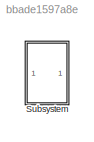
MODEL slx_bbade1597a8e
KIND model
CONFIG AbsTol = auto
CONFIG EnableMultiTasking = off
CONFIG FixedStep = auto
CONFIG MaxStep = 0.02
CONFIG MinStep = 0.01
CONFIG RelTol = 1e-3
CONFIG SampleTimeConstraint = Unconstrained
CONFIG SolverName = ode45
CONFIG StartTime = 0.0
CONFIG StopTime = 15.0
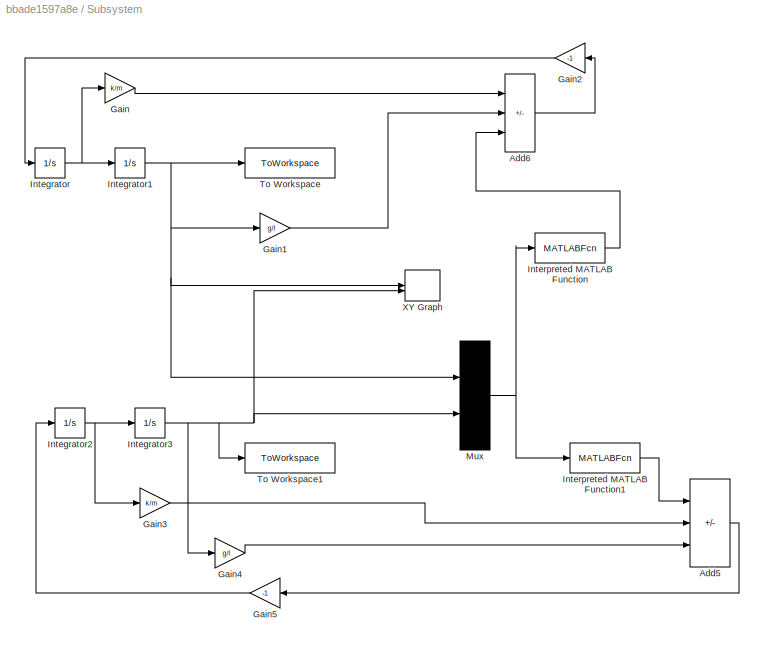
BLOCK [SubSystem] Subsystem
BLOCK [Sum] Subsystem/Add5
  IconShape = rectangular
  Inputs = -++
BLOCK [Sum] Subsystem/Add6
  IconShape = rectangular
  Inputs = ++-
BLOCK [Gain] Subsystem/Gain
  Gain = k/m
BLOCK [Gain] Subsystem/Gain1
  Gain = g/l
BLOCK [Gain] Subsystem/Gain2
  Gain = -1
  NameLocation = top
BLOCK [Gain] Subsystem/Gain3
  Gain = k/m
BLOCK [Gain] Subsystem/Gain4
  Gain = g/l
BLOCK [Gain] Subsystem/Gain5
  Gain = -1
  NameLocation = top
BLOCK [Integrator] Subsystem/Integrator
BLOCK [Integrator] Subsystem/Integrator1
  InitialCondition = x
BLOCK [Integrator] Subsystem/Integrator2
BLOCK [Integrator] Subsystem/Integrator3
  InitialCondition = y
BLOCK [MATLABFcn] Subsystem/Interpreted MATLAB Function
  MATLABFcn = sum(ai.*(xi-u(1))./(sqrt((xi-u(1)).^2+(yi-u(2)).^2+di.^2)).^3)
BLOCK [MATLABFcn] Subsystem/Interpreted MATLAB Function1
  MATLABFcn = sum(ai.*(yi-u(2))./(sqrt((xi-u(1)).^2+(yi-u(2)).^2+di.^2)).^3)
BLOCK [Mux] Subsystem/Mux
  DisplayOption = bar
  Inputs = 2
BLOCK [ToWorkspace] Subsystem/To Workspace
  FixptAsFi = on
  MaxDataPoints = inf
  SampleTime = -1
  SaveFormat = Timeseries
  VariableName = x
BLOCK [ToWorkspace] Subsystem/To Workspace1
  FixptAsFi = on
  MaxDataPoints = inf
  SampleTime = -1
  SaveFormat = Timeseries
  VariableName = y
BLOCK [Record] Subsystem/XY Graph
  CompatibilityTag = XY
  FileSettingsInternal = {"entries":[{"content":{"excelSettings":{"content":{},"type":"Streamout.ExcelSettings"}},"type":"Streamout.FileSettingStorage","uuid":""}],"packageUris":["http:\/\/schema.mathworks.com\/mf0\/streamout_blocks\/R2020a"],"version":"1.0"}
  Layout = [1 1]
  SignalsInternal = {"entries":[{"content":{"signals":[{"content":{"blockPath":[],"dimensions":[1],"domain":"","lineColor":"#a2142f","plots":[ 1 ],"port":1,"sid":[""],"signalID":1,"signalName":"Integrator1"},"type":"RecordBlkView.Signal","uuid":""},{"content":{"blockPath":[],"dimensions":[1],"domain":"","lineColor":"#139fff","plots":[ 1 ],"port":2,"sid":[""],"signalID":2,"signalName":"Integrator3"},"type":"RecordBlkV...<+168ch>
  VisualizationBindings = {"xyplotplugin":{"info":[{"series":[{"bindingParametersList":[{"parameter":"X-Axis","signalID":1,"signalName":"Integrator1"},{"parameter":"Y-Axis","signalID":2,"signalName":"Integrator3"}],"seriesID":0}],"subplotID":1}]}}
LINE Subsystem/Add5:1 -> Subsystem/Gain5:1
LINE Subsystem/Add6:1 -> Subsystem/Gain2:1
LINE Subsystem/Gain1:1 -> Subsystem/Add6:2
LINE Subsystem/Gain2:1 -> Subsystem/Integrator:1
LINE Subsystem/Gain3:1 -> Subsystem/Add5:2
LINE Subsystem/Gain4:1 -> Subsystem/Add5:3
LINE Subsystem/Gain5:1 -> Subsystem/Integrator2:1
LINE Subsystem/Gain:1 -> Subsystem/Add6:1
NET Subsystem/Integrator1:1 -> Subsystem/Gain1:1, Subsystem/Mux:1, Subsystem/To Workspace:1, Subsystem/XY Graph:1
NET Subsystem/Integrator2:1 -> Subsystem/Gain3:1, Subsystem/Integrator3:1
NET Subsystem/Integrator3:1 -> Subsystem/Gain4:1, Subsystem/Mux:2, Subsystem/To Workspace1:1, Subsystem/XY Graph:2
NET Subsystem/Integrator:1 -> Subsystem/Gain:1, Subsystem/Integrator1:1
LINE Subsystem/Interpreted MATLAB Function1:1 -> Subsystem/Add5:1
LINE Subsystem/Interpreted MATLAB Function:1 -> Subsystem/Add6:3
NET Subsystem/Mux:1 -> Subsystem/Interpreted MATLAB Function1:1, Subsystem/Interpreted MATLAB Function:1
note: NET lines group one-source signal fan-out (src -> all destinations, sorted); 1:1 wires keep LINE
